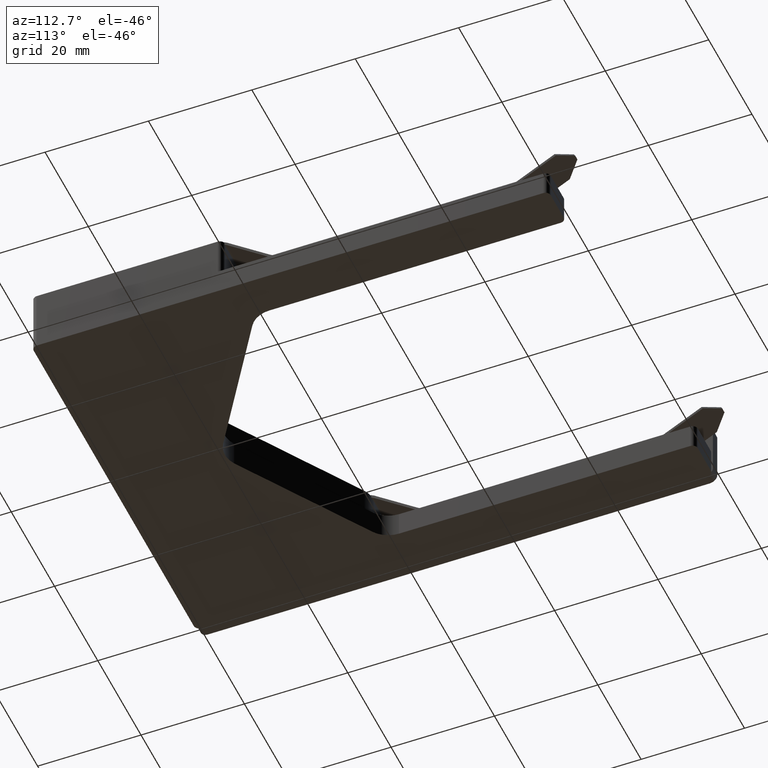
[diagram: clean part render]
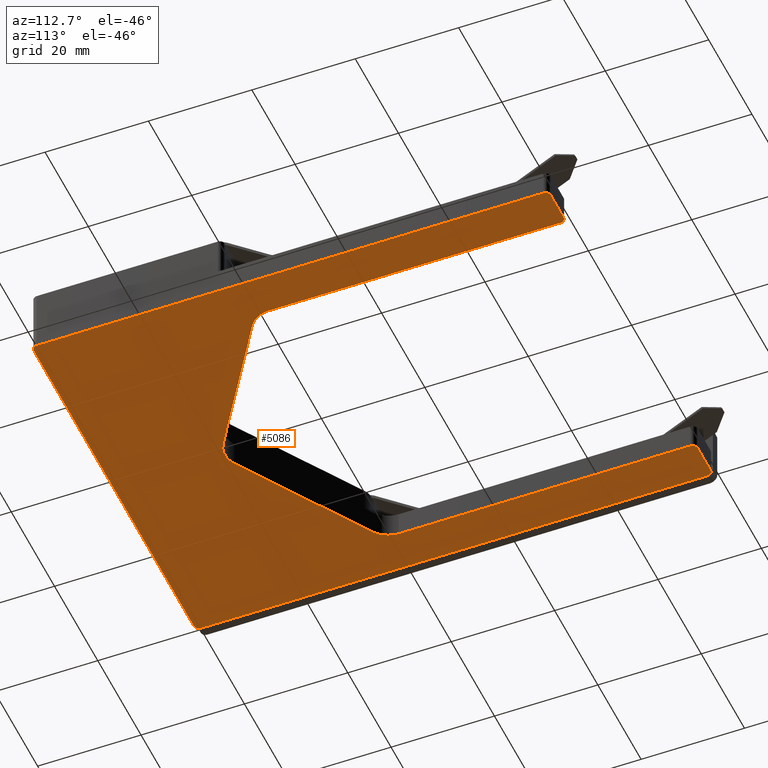
[diagram: same view with one face highlighted and labeled with its STEP entity id]
A machine part, auxiliary view. The second image highlights one B-rep face of the part: STEP entity #5086.
In plain terms, the highlighted planar face has unit normal (-0, 0, 1).
Its self-contained STEP definition (entity closure, byte-faithful):
#3 = CARTESIAN_POINT ( 'NONE',  ( -60.42730352438956500, -41.59921972408116600, -2.365295459494376500E-012 ) ) ;
#186 = CARTESIAN_POINT ( 'NONE',  ( -60.42730352438956500, -40.59921972408115900, -2.365295459494376500E-012 ) ) ;
#187 = DIRECTION ( 'NONE',  ( -0.0000000000000000000, 0.0000000000000000000, 1.000000000000000000 ) ) ;
#188 = DIRECTION ( 'NONE',  ( 1.000000000000000000, 0.0000000000000000000, 0.0000000000000000000 ) ) ;
#189 = CARTESIAN_POINT ( 'NONE',  ( -23.42730352438834300, 58.40078027591815900, -2.365295459494376500E-012 ) ) ;
#191 = CARTESIAN_POINT ( 'NONE',  ( -23.42730352438950800, -41.59921972408116600, -2.365295459494376500E-012 ) ) ;
#192 = DIRECTION ( 'NONE',  ( 1.000000000000000000, 0.0000000000000000000, 0.0000000000000000000 ) ) ;
#201 = DIRECTION ( 'NONE',  ( -1.000000000000000000, 1.850371707708593800E-014, 0.0000000000000000000 ) ) ;
#211 = CARTESIAN_POINT ( 'NONE',  ( -60.42730352438956500, 57.40078027591884100, -2.365295459494376500E-012 ) ) ;
#213 = DIRECTION ( 'NONE',  ( -0.0000000000000000000, 0.0000000000000000000, 1.000000000000000000 ) ) ;
#214 = DIRECTION ( 'NONE',  ( 1.000000000000000000, 0.0000000000000000000, 0.0000000000000000000 ) ) ;
#231 = CARTESIAN_POINT ( 'NONE',  ( 13.57269647561043500, -40.59921972408115900, -2.365295459494376500E-012 ) ) ;
#232 = DIRECTION ( 'NONE',  ( -0.0000000000000000000, 0.0000000000000000000, 1.000000000000000000 ) ) ;
#234 = DIRECTION ( 'NONE',  ( 1.000000000000000000, 0.0000000000000000000, 0.0000000000000000000 ) ) ;
#690 = FACE_OUTER_BOUND ( 'NONE', #2926, .T. ) ;
#890 = CIRCLE ( 'NONE', #1745, 1.000000000000000900 ) ;
#896 = CIRCLE ( 'NONE', #1743, 0.9999999999999940000 ) ;
#898 = VECTOR ( 'NONE', #201, 1000.000000000000000 ) ;
#902 = LINE ( 'NONE', #189, #898 ) ;
#903 = VECTOR ( 'NONE', #192, 1000.000000000000000 ) ;
#906 = LINE ( 'NONE', #191, #903 ) ;
#909 = CIRCLE ( 'NONE', #1740, 0.9999999999999940000 ) ;
#1068 = CIRCLE ( 'NONE', #1706, 4.999999999999990200 ) ;
#1074 = VECTOR ( 'NONE', #3136, 1000.000000000000000 ) ;
#1076 = LINE ( 'NONE', #3123, #1074 ) ;
#1092 = VECTOR ( 'NONE', #3098, 1000.000000000000000 ) ;
#1094 = LINE ( 'NONE', #3097, #1092 ) ;
#1115 = CIRCLE ( 'NONE', #1696, 4.999999999999997300 ) ;
#1120 = CIRCLE ( 'NONE', #1695, 0.9999999999999974500 ) ;
#1122 = VECTOR ( 'NONE', #3065, 1000.000000000000000 ) ;
#1123 = CIRCLE ( 'NONE', #1694, 0.9999999999999974500 ) ;
#1127 = LINE ( 'NONE', #3052, #1122 ) ;
#1131 = VECTOR ( 'NONE', #3056, 1000.000000000000000 ) ;
#1133 = LINE ( 'NONE', #3047, #1131 ) ;
#1135 = VECTOR ( 'NONE', #3051, 1000.000000000000000 ) ;
#1138 = LINE ( 'NONE', #3049, #1135 ) ;
#1146 = VECTOR ( 'NONE', #4004, 1000.000000000000000 ) ;
#1150 = CIRCLE ( 'NONE', #1689, 4.999999999999997300 ) ;
#1155 = VECTOR ( 'NONE', #3998, 1000.000000000000000 ) ;
#1156 = LINE ( 'NONE', #4011, #1146 ) ;
#1159 = LINE ( 'NONE', #4000, #1155 ) ;
#1161 = CIRCLE ( 'NONE', #1688, 1.000000000000000900 ) ;
#1688 = AXIS2_PLACEMENT_3D ( 'NONE', #4001, #4002, #4003 ) ;
#1689 = AXIS2_PLACEMENT_3D ( 'NONE', #4012, #4013, #4014 ) ;
#1694 = AXIS2_PLACEMENT_3D ( 'NONE', #3069, #3070, #3071 ) ;
#1695 = AXIS2_PLACEMENT_3D ( 'NONE', #3074, #3075, #3076 ) ;
#1696 = AXIS2_PLACEMENT_3D ( 'NONE', #3080, #3081, #3082 ) ;
#1706 = AXIS2_PLACEMENT_3D ( 'NONE', #4471, #4473, #4474 ) ;
#1740 = AXIS2_PLACEMENT_3D ( 'NONE', #186, #187, #188 ) ;
#1743 = AXIS2_PLACEMENT_3D ( 'NONE', #211, #213, #214 ) ;
#1745 = AXIS2_PLACEMENT_3D ( 'NONE', #231, #232, #234 ) ;
#2496 = VERTEX_POINT ( 'NONE', #2958 ) ;
#2497 = VERTEX_POINT ( 'NONE', #2957 ) ;
#2502 = VERTEX_POINT ( 'NONE', #5195 ) ;
#2520 = VERTEX_POINT ( 'NONE', #2948 ) ;
#2521 = VERTEX_POINT ( 'NONE', #2947 ) ;
#2523 = VERTEX_POINT ( 'NONE', #5177 ) ;
#2527 = VERTEX_POINT ( 'NONE', #4015 ) ;
#2536 = VERTEX_POINT ( 'NONE', #5172 ) ;
#2538 = VERTEX_POINT ( 'NONE', #3 ) ;
#2542 = VERTEX_POINT ( 'NONE', #4756 ) ;
#2565 = VERTEX_POINT ( 'NONE', #4779 ) ;
#2573 = VERTEX_POINT ( 'NONE', #4787 ) ;
#2574 = VERTEX_POINT ( 'NONE', #4788 ) ;
#2581 = VERTEX_POINT ( 'NONE', #4795 ) ;
#2582 = VERTEX_POINT ( 'NONE', #4796 ) ;
#2583 = VERTEX_POINT ( 'NONE', #4797 ) ;
#2584 = VERTEX_POINT ( 'NONE', #4798 ) ;
#2589 = VERTEX_POINT ( 'NONE', #4803 ) ;
#2842 = ORIENTED_EDGE ( 'NONE', *, *, #4387, .F. ) ;
#2843 = ORIENTED_EDGE ( 'NONE', *, *, #4386, .F. ) ;
#2844 = ORIENTED_EDGE ( 'NONE', *, *, #4389, .F. ) ;
#2845 = ORIENTED_EDGE ( 'NONE', *, *, #4416, .F. ) ;
#2846 = ORIENTED_EDGE ( 'NONE', *, *, #4420, .T. ) ;
#2847 = ORIENTED_EDGE ( 'NONE', *, *, #4367, .F. ) ;
#2848 = ORIENTED_EDGE ( 'NONE', *, *, #4371, .T. ) ;
#2849 = ORIENTED_EDGE ( 'NONE', *, *, #4381, .T. ) ;
#2850 = ORIENTED_EDGE ( 'NONE', *, *, #4392, .T. ) ;
#2851 = ORIENTED_EDGE ( 'NONE', *, *, #4405, .F. ) ;
#2852 = ORIENTED_EDGE ( 'NONE', *, *, #4366, .F. ) ;
#2853 = ORIENTED_EDGE ( 'NONE', *, *, #4960, .F. ) ;
#2854 = ORIENTED_EDGE ( 'NONE', *, *, #4963, .F. ) ;
#2855 = ORIENTED_EDGE ( 'NONE', *, *, #4372, .F. ) ;
#2856 = ORIENTED_EDGE ( 'NONE', *, *, #4954, .F. ) ;
#2857 = ORIENTED_EDGE ( 'NONE', *, *, #4957, .F. ) ;
#2858 = ORIENTED_EDGE ( 'NONE', *, *, #4967, .F. ) ;
#2859 = ORIENTED_EDGE ( 'NONE', *, *, #4379, .F. ) ;
#2926 = EDGE_LOOP ( 'NONE', ( #2859, #2858, #2857, #2856, #2855, #2854, #2853, #2852, #2851, #2850, #2849, #2848, #2847, #2846, #2845, #2844, #2843, #2842 ) ) ;
#2947 = CARTESIAN_POINT ( 'NONE',  ( 13.57269647561043500, -41.59921972408116600, -2.365295459494376500E-012 ) ) ;
#2948 = CARTESIAN_POINT ( 'NONE',  ( -60.42730352438956500, 58.40078027591883400, -2.365295459494376500E-012 ) ) ;
#2957 = CARTESIAN_POINT ( 'NONE',  ( 7.572696475610322300, 58.40078027591883400, -2.365295459494376500E-012 ) ) ;
#2958 = CARTESIAN_POINT ( 'NONE',  ( 13.57269647561043500, 58.40078027591883400, -2.365295459494376500E-012 ) ) ;
#3047 = CARTESIAN_POINT ( 'NONE',  ( -30.91287331481139200, -16.21416356293253000, -2.365295459494376500E-012 ) ) ;
#3049 = CARTESIAN_POINT ( 'NONE',  ( 14.57269647561032500, -4.591615161343519900, -2.365295459494376500E-012 ) ) ;
#3051 = DIRECTION ( 'NONE',  ( 0.0000000000000000000, 1.000000000000000000, 0.0000000000000000000 ) ) ;
#3052 = CARTESIAN_POINT ( 'NONE',  ( -23.42730352438950800, 58.40078027591883400, -2.365295459494376500E-012 ) ) ;
#3056 = DIRECTION ( 'NONE',  ( 0.8407197784773563500, -0.5414704554054494700, 0.0000000000000000000 ) ) ;
#3065 = DIRECTION ( 'NONE',  ( -1.000000000000000000, 0.0000000000000000000, 0.0000000000000000000 ) ) ;
#3069 = CARTESIAN_POINT ( 'NONE',  ( 13.57269647561032500, 57.40078027591884100, -2.365295459494376500E-012 ) ) ;
#3070 = DIRECTION ( 'NONE',  ( -0.0000000000000000000, 0.0000000000000000000, 1.000000000000000000 ) ) ;
#3071 = DIRECTION ( 'NONE',  ( 1.000000000000000000, 0.0000000000000000000, 0.0000000000000000000 ) ) ;
#3074 = CARTESIAN_POINT ( 'NONE',  ( 7.572696475610322300, 57.40078027591884100, -2.365295459494376500E-012 ) ) ;
#3075 = DIRECTION ( 'NONE',  ( -0.0000000000000000000, 0.0000000000000000000, 1.000000000000000000 ) ) ;
#3076 = DIRECTION ( 'NONE',  ( 1.000000000000000000, 0.0000000000000000000, 0.0000000000000000000 ) ) ;
#3080 = CARTESIAN_POINT ( 'NONE',  ( -48.42730352438979200, 1.013382055684451900, -2.365295459494376500E-012 ) ) ;
#3081 = DIRECTION ( 'NONE',  ( -0.0000000000000000000, 0.0000000000000000000, 1.000000000000000000 ) ) ;
#3082 = DIRECTION ( 'NONE',  ( 1.000000000000000000, 0.0000000000000000000, 0.0000000000000000000 ) ) ;
#3097 = CARTESIAN_POINT ( 'NONE',  ( -53.42730352438981400, -4.591615161343400000, -2.365295459494376500E-012 ) ) ;
#3098 = DIRECTION ( 'NONE',  ( 3.999369699523756200E-015, 1.000000000000000000, 0.0000000000000000000 ) ) ;
#3123 = CARTESIAN_POINT ( 'NONE',  ( 6.572696475610321400, -4.591615161343519900, -2.365295459494376500E-012 ) ) ;
#3136 = DIRECTION ( 'NONE',  ( 0.0000000000000000000, -1.000000000000000000, 0.0000000000000000000 ) ) ;
#3471 = CARTESIAN_POINT ( 'NONE',  ( -23.42730352438950800, -4.591615161343519900, -2.365295459494376500E-012 ) ) ;
#3478 = PLANE ( 'NONE',  #4155 ) ;
#3481 = DIRECTION ( 'NONE',  ( -0.0000000000000000000, 0.0000000000000000000, 1.000000000000000000 ) ) ;
#3483 = DIRECTION ( 'NONE',  ( 1.000000000000000000, 0.0000000000000000000, 0.0000000000000000000 ) ) ;
#3998 = DIRECTION ( 'NONE',  ( -0.8407185659663339900, -0.5414723380187679300, 0.0000000000000000000 ) ) ;
#4000 = CARTESIAN_POINT ( 'NONE',  ( -15.93258434952058900, -16.22831220864085800, -2.365295459494376500E-012 ) ) ;
#4001 = CARTESIAN_POINT ( 'NONE',  ( -54.42730352438957200, 57.40078027591872700, -2.365295459494376500E-012 ) ) ;
#4002 = DIRECTION ( 'NONE',  ( -0.0000000000000000000, 0.0000000000000000000, 1.000000000000000000 ) ) ;
#4003 = DIRECTION ( 'NONE',  ( 1.000000000000000000, 0.0000000000000000000, 0.0000000000000000000 ) ) ;
#4004 = DIRECTION ( 'NONE',  ( 0.0000000000000000000, -1.000000000000000000, 0.0000000000000000000 ) ) ;
#4011 = CARTESIAN_POINT ( 'NONE',  ( -61.42730352438956500, -4.591615161343519900, -2.365295459494376500E-012 ) ) ;
#4012 = CARTESIAN_POINT ( 'NONE',  ( -23.41173280395468500, -15.10003007522837000, -2.365295459494376500E-012 ) ) ;
#4013 = DIRECTION ( 'NONE',  ( -0.0000000000000000000, 0.0000000000000000000, 1.000000000000000000 ) ) ;
#4014 = DIRECTION ( 'NONE',  ( 1.000000000000000000, 0.0000000000000000000, 0.0000000000000000000 ) ) ;
#4015 = CARTESIAN_POINT ( 'NONE',  ( 14.57269647561043500, -40.59921972408115900, -2.365295459494376500E-012 ) ) ;
#4155 = AXIS2_PLACEMENT_3D ( 'NONE', #3471, #3481, #3483 ) ;
#4366 = EDGE_CURVE ( 'NONE', #2573, #2536, #1161, .T. ) ;
#4367 = EDGE_CURVE ( 'NONE', #2565, #2581, #1159, .T. ) ;
#4371 = EDGE_CURVE ( 'NONE', #2574, #2581, #1150, .T. ) ;
#4372 = EDGE_CURVE ( 'NONE', #2583, #2542, #1156, .T. ) ;
#4379 = EDGE_CURVE ( 'NONE', #2527, #2502, #1138, .T. ) ;
#4381 = EDGE_CURVE ( 'NONE', #2523, #2574, #1133, .T. ) ;
#4386 = EDGE_CURVE ( 'NONE', #2496, #2497, #1127, .T. ) ;
#4387 = EDGE_CURVE ( 'NONE', #2502, #2496, #1123, .T. ) ;
#4389 = EDGE_CURVE ( 'NONE', #2497, #2584, #1120, .T. ) ;
#4392 = EDGE_CURVE ( 'NONE', #2589, #2523, #1115, .T. ) ;
#4405 = EDGE_CURVE ( 'NONE', #2589, #2573, #1094, .T. ) ;
#4416 = EDGE_CURVE ( 'NONE', #2584, #2582, #1076, .T. ) ;
#4420 = EDGE_CURVE ( 'NONE', #2565, #2582, #1068, .T. ) ;
#4471 = CARTESIAN_POINT ( 'NONE',  ( 1.572696475610323900, 0.9934047087201987000, -2.365295459494376500E-012 ) ) ;
#4473 = DIRECTION ( 'NONE',  ( -0.0000000000000000000, 0.0000000000000000000, 1.000000000000000000 ) ) ;
#4474 = DIRECTION ( 'NONE',  ( 1.000000000000000000, 0.0000000000000000000, 0.0000000000000000000 ) ) ;
#4756 = CARTESIAN_POINT ( 'NONE',  ( -61.42730352438956500, -40.59921972408115900, -2.365295459494376500E-012 ) ) ;
#4779 = CARTESIAN_POINT ( 'NONE',  ( 4.272447292844858200, -3.215080235394644200, -2.365295459494376500E-012 ) ) ;
#4787 = CARTESIAN_POINT ( 'NONE',  ( -53.42730352438957200, 57.40078027591872700, -2.365295459494376500E-012 ) ) ;
#4788 = CARTESIAN_POINT ( 'NONE',  ( -26.00921573168215400, -19.37239270498772800, -2.365295459494376500E-012 ) ) ;
#4795 = CARTESIAN_POINT ( 'NONE',  ( -20.81424987622721500, -19.37239270498772500, -2.365295459494376500E-012 ) ) ;
#4796 = CARTESIAN_POINT ( 'NONE',  ( 6.572696475610321400, 0.9934047087201987000, -2.365295459494376500E-012 ) ) ;
#4797 = CARTESIAN_POINT ( 'NONE',  ( -61.42730352438956500, 57.40078027591884100, -2.365295459494376500E-012 ) ) ;
#4798 = CARTESIAN_POINT ( 'NONE',  ( 6.572696475610321400, 57.40078027591884100, -2.365295459494376500E-012 ) ) ;
#4803 = CARTESIAN_POINT ( 'NONE',  ( -53.42730352438979200, 1.013382055684395500, -2.365295459494376500E-012 ) ) ;
#4954 = EDGE_CURVE ( 'NONE', #2542, #2538, #909, .T. ) ;
#4957 = EDGE_CURVE ( 'NONE', #2538, #2521, #906, .T. ) ;
#4960 = EDGE_CURVE ( 'NONE', #2536, #2520, #902, .T. ) ;
#4963 = EDGE_CURVE ( 'NONE', #2520, #2583, #896, .T. ) ;
#4967 = EDGE_CURVE ( 'NONE', #2521, #2527, #890, .T. ) ;
#5086 = ADVANCED_FACE ( 'NONE', ( #690 ), #3478, .F. ) ;
#5172 = CARTESIAN_POINT ( 'NONE',  ( -54.42730352438957200, 58.40078027591872700, -2.365295459494376500E-012 ) ) ;
#5177 = CARTESIAN_POINT ( 'NONE',  ( -51.12705434818371900, -3.195102884222557300, -2.365295459494376500E-012 ) ) ;
#5195 = CARTESIAN_POINT ( 'NONE',  ( 14.57269647561032500, 57.40078027591884100, -2.365295459494376500E-012 ) ) ;